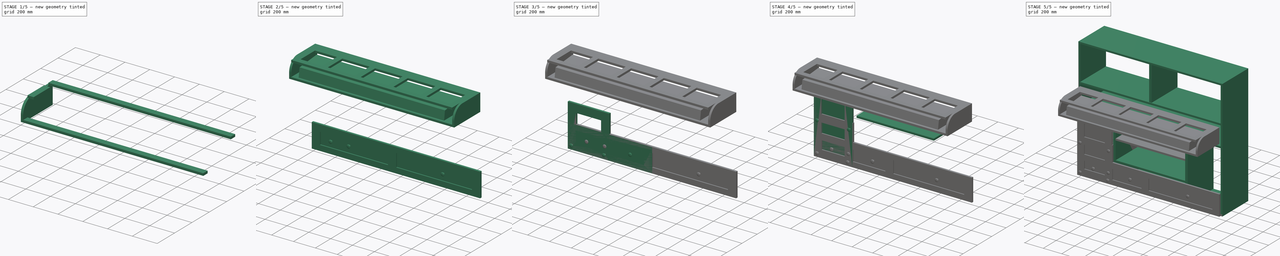
[diagram: build sequence overview — one tinted view per stage of 5, left to right]
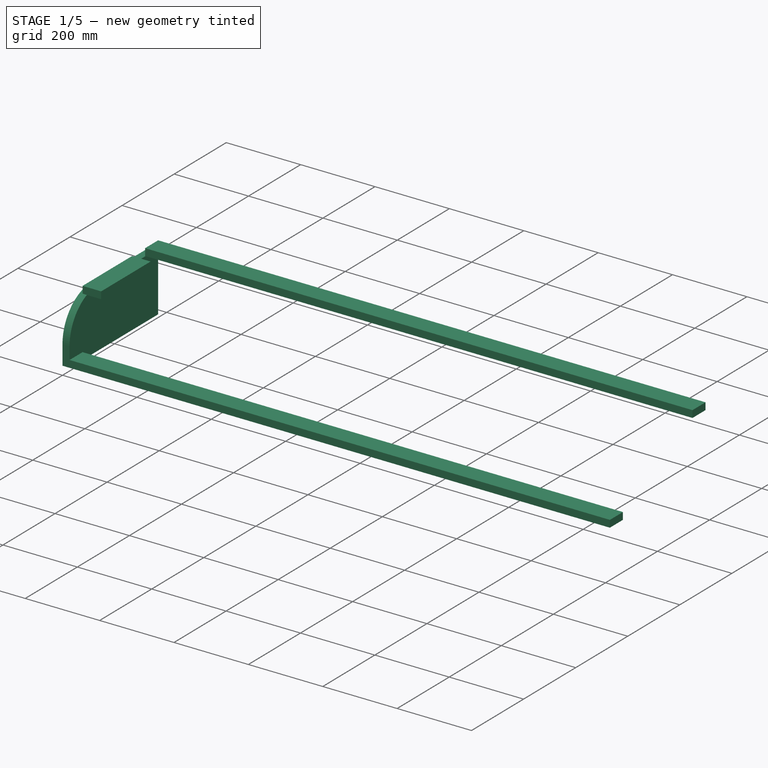
[diagram: stage 1 of 5 — iso view after this stage's code; geometry added in this stage tinted green]
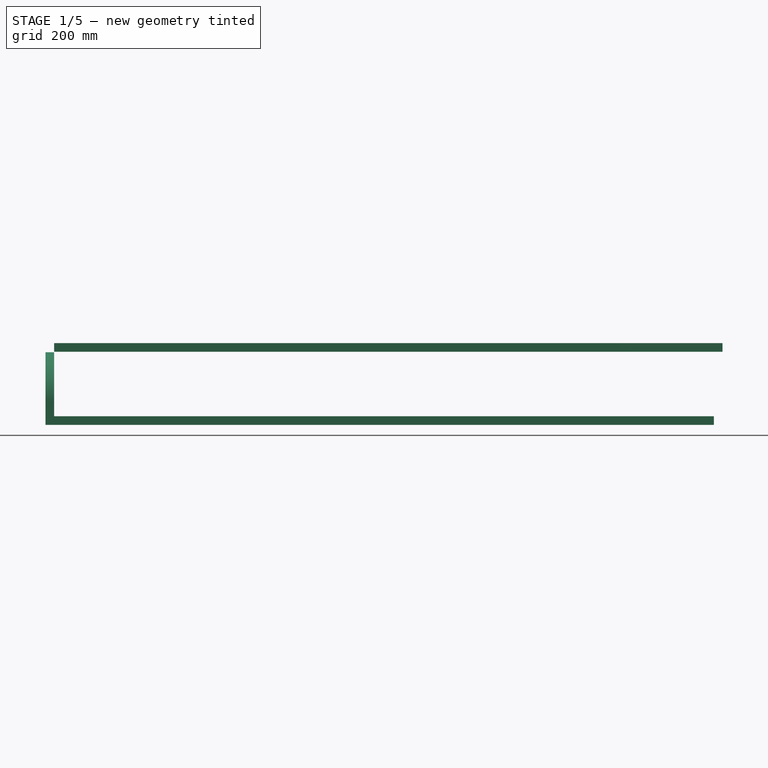
[diagram: stage 1 of 5 — front view after this stage's code; geometry added in this stage tinted green]
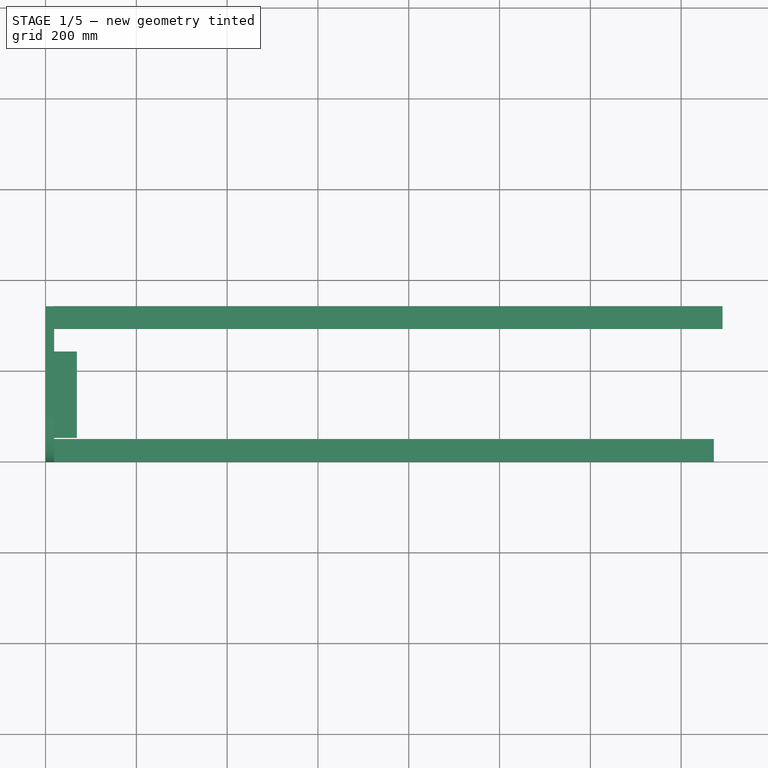
[diagram: stage 1 of 5 — top view after this stage's code; geometry added in this stage tinted green]
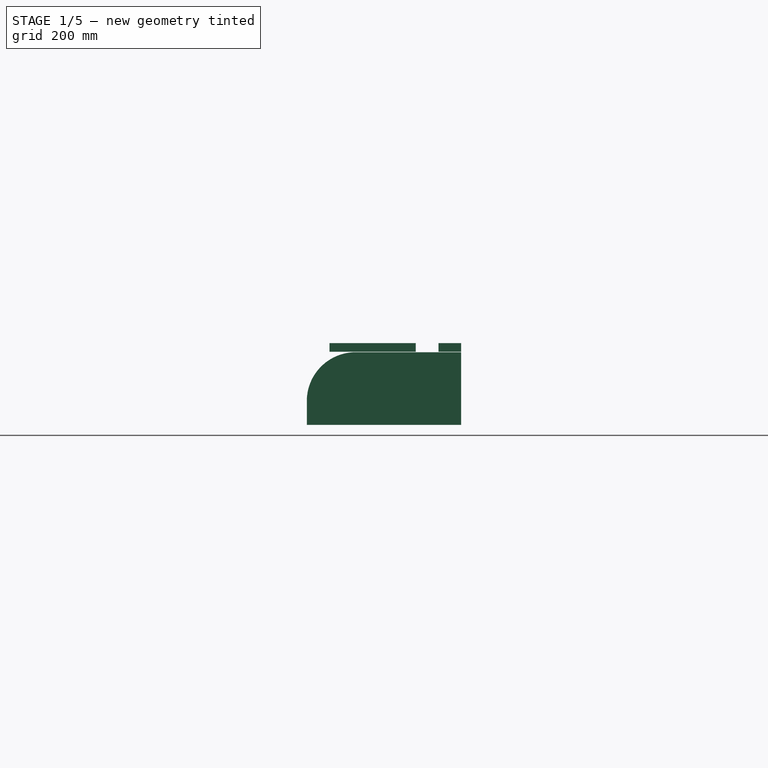
[diagram: stage 1 of 5 — right view after this stage's code; geometry added in this stage tinted green]
FCSTD DOCUMENT  (FreeCAD 0.18.4R)
Label: SzafkaNaPianino
License: All rights reserved
LicenseURL: http://en.wikipedia.org/wiki/All_rights_reserved
objects: PartDesign::Body×23, Sketcher::SketchObject×21, Part::Part2DObjectPython×17, PartDesign::Pad×12, Part::Box×11, PartDesign::FeatureBase×11, PartDesign::Revolution×10, PartDesign::Pocket×7, App::DocumentObjectGroup×4, Part::Compound×1
note: 142 computed .brp shape members not serialized (recipe doc carries the construction recipe); baked Part::Feature solids carry a one-line shape summary decoded from their .brp

FEATURE [PartDesign::Body] Body021  label="PodstawaSzuflady"
  Group = -> [Sketch041,Pad017]
  Origin = -> Origin021
  Placement = pos=(19,0,0) rot=(0,0,1;0rad)
  Tip = -> Pad017
FEATURE [Sketcher::SketchObject] Sketch042
  MapMode = 5
  Placement = pos=(0,0,0) rot=(0.57735,0.57735,0.57735;2.0944rad)
  Support = -> [YZ_Plane022]
  sketch-geometry (5):
    g0: LineSegment StartX=0 StartY=0 StartZ=0 EndX=340 EndY=0 EndZ=0
    g1: LineSegment StartX=340 StartY=0 StartZ=0 EndX=340 EndY=160 EndZ=0
    g2: ArcOfCircle CenterX=107.412 CenterY=52.588 CenterZ=0 NormalX=0 NormalY=0 NormalZ=1 AngleXU=0 Radius=107.412 StartAngle=1.5708 EndAngle=3.14159
    g3: LineSegment StartX=0 StartY=52.588 StartZ=0 EndX=0 EndY=0 EndZ=0
    g4: LineSegment StartX=107.412 StartY=160 StartZ=0 EndX=340 EndY=160 EndZ=0
  constraints (13):
    c: Coincident(g0,g1)
    c: Horizontal(g0,g0)
    c: Vertical(g1,g0)
    c: Coincident(g3,g0)
    c: Coincident(g0,g-1)
    c: Coincident(g2,g4)
    c: Coincident(g4,g1)
    c: Horizontal(g2,g1)
    c: DistanceX(g0,g0) = 340
    c: DistanceY(g1,g1) = 160
    c: Tangent(g2,g4)
    c: Tangent(g2,g3) = -1.5708
    c: Vertical(g0,g2)
FEATURE [PartDesign::Pad] Pad018
  Length = 19
  Length2 = 100
  Placement = pos=(0,0,0) rot=(0.57735,0.57735,0.57735;2.0944rad)
  Profile = -> Sketch042
  Type = 0
FEATURE [PartDesign::Body] Body023  label="SzufladaBokPrawy"
  Group = -> [Clone004]
  Origin = -> Origin023
  Placement = pos=(1491,0,0) rot=(0,0,1;0rad)
  Tip = -> Clone004
FEATURE [Sketcher::SketchObject] Sketch043
  MapMode = 5
  Placement = pos=(0,0,0) rot=(0.57735,0.57735,0.57735;2.0944rad)
  Support = -> [YZ_Plane024]
  sketch-geometry (4):
    g0: LineSegment StartX=0 StartY=0 StartZ=0 EndX=50 EndY=0 EndZ=0
    g1: LineSegment StartX=50 StartY=0 StartZ=0 EndX=50 EndY=19 EndZ=0
    g2: LineSegment StartX=50 StartY=19 StartZ=0 EndX=0 EndY=19 EndZ=0
    g3: LineSegment StartX=0 StartY=19 StartZ=0 EndX=0 EndY=0 EndZ=0
  constraints (11):
    c: Coincident(g0,g1)
    c: Coincident(g1,g2)
    c: Coincident(g2,g3)
    c: Coincident(g3,g0)
    c: Horizontal(g0)
    c: Horizontal(g2)
    c: Vertical(g1)
    c: Vertical(g3)
    c: Coincident(g0,g-1)
    c: DistanceX(g2,g1) = 50
    c: DistanceY(g0,g2) = 19
FEATURE [PartDesign::Pad] Pad019
  Length = 1472
  Length2 = 100
  Placement = pos=(0,0,0) rot=(0.57735,0.57735,0.57735;2.0944rad)
  Profile = -> Sketch043
  Type = 0
FEATURE [PartDesign::Body] Body024  label="PoprzeczkaTylna"
  Group = -> [Sketch043,Pad019]
  Origin = -> Origin024
  Placement = pos=(19,290,141) rot=(0,0,1;0rad)
  Tip = -> Pad019
FEATURE [PartDesign::FeatureBase] Clone005
  BaseFeature = -> Pad019
  Placement = pos=(0,0,0) rot=(0.57735,0.57735,0.57735;2.0944rad)
FEATURE [PartDesign::Body] Body025  label="PoprzeczkaTylnaRuchoma"
  Group = -> [Clone005]
  Origin = -> Origin025
  Placement = pos=(19,240,141) rot=(0,0,1;0rad)
  Tip = -> Clone005
FEATURE [PartDesign::FeatureBase] Clone006
  BaseFeature = -> Body024
  Placement = pos=(19,290,161) rot=(0,0,1;0rad)
FEATURE [PartDesign::Body] Body026  label="PoprzeczkaPrzedniaRuchoma"
  Group = -> [Clone006]
  Origin = -> Origin026
  Placement = pos=(0,-290,-20) rot=(0,0,1;0rad)
  Tip = -> Clone006
FEATURE [Sketcher::SketchObject] Sketch044
  MapMode = 5
  Placement = pos=(0,0,0) rot=(1,0,0;1.5708rad)
  Support = -> [XZ_Plane027]
  sketch-geometry (4):
    g0: LineSegment StartX=0 StartY=0 StartZ=0 EndX=50 EndY=0 EndZ=0
    g1: LineSegment StartX=50 StartY=0 StartZ=0 EndX=50 EndY=19 EndZ=0
    g2: LineSegment StartX=50 StartY=19 StartZ=0 EndX=0 EndY=19 EndZ=0
    g3: LineSegment StartX=0 StartY=19 StartZ=0 EndX=0 EndY=0 EndZ=0
  constraints (11):
    c: Coincident(g0,g1)
    c: Coincident(g1,g2)
    c: Coincident(g2,g3)
    c: Coincident(g3,g0)
    c: Horizontal(g0)
    c: Horizontal(g2)
    c: Vertical(g1)
    c: Vertical(g3)
    c: Coincident(g0,g-1)
    c: DistanceY(g0,g2) = 19
    c: DistanceX(g0,g0) = 50
FEATURE [PartDesign::Pad] Pad020
  Length = 190
  Length2 = 100
  Placement = pos=(0,0,0) rot=(1,0,0;1.5708rad)
  Profile = -> Sketch044
  Type = 0
FEATURE [PartDesign::Body] Body027  label="Podluznica01"
  Group = -> [Sketch044,Pad020]
  Origin = -> Origin027
  Placement = pos=(19,240,141) rot=(0,0,1;0rad)
  Tip = -> Pad020
FEATURE [PartDesign::FeatureBase] Clone007
  BaseFeature = -> Body027
  Placement = pos=(19,240,161) rot=(0,0,1;0rad)
FEATURE [PartDesign::Body] Body028  label="Podluznica02"
  Group = -> [Clone007]
  Origin = -> Origin028
  Placement = pos=(250,0,-20) rot=(0,0,1;0rad)
  Tip = -> Clone007
FEATURE [PartDesign::FeatureBase] Clone008
  BaseFeature = -> Body027
  Placement = pos=(19,240,161) rot=(0,0,1;0rad)
FEATURE [PartDesign::Body] Body029  label="Podluznica03"
  Group = -> [Clone008]
  Origin = -> Origin029
  Placement = pos=(550,0,-20) rot=(0,0,1;0rad)
  Tip = -> Clone008
FEATURE [PartDesign::FeatureBase] Clone009
  BaseFeature = -> Body027
  Placement = pos=(19,240,161) rot=(0,0,1;0rad)
FEATURE [PartDesign::Body] Body030  label="Podluznica04"
  Group = -> [Clone009]
  Origin = -> Origin030
  Placement = pos=(850,0,-20) rot=(0,0,1;0rad)
  Tip = -> Clone009
FEATURE [PartDesign::FeatureBase] Clone010
  BaseFeature = -> Body027
  Placement = pos=(19,240,161) rot=(0,0,1;0rad)
FEATURE [PartDesign::Body] Body031  label="Podluznica05"
  Group = -> [Clone010]
  Origin = -> Origin031
  Placement = pos=(1150,0,-20) rot=(0,0,1;0rad)
  Tip = -> Clone010
FEATURE [PartDesign::FeatureBase] Clone011
  BaseFeature = -> Body027
  Placement = pos=(19,240,161) rot=(0,0,1;0rad)
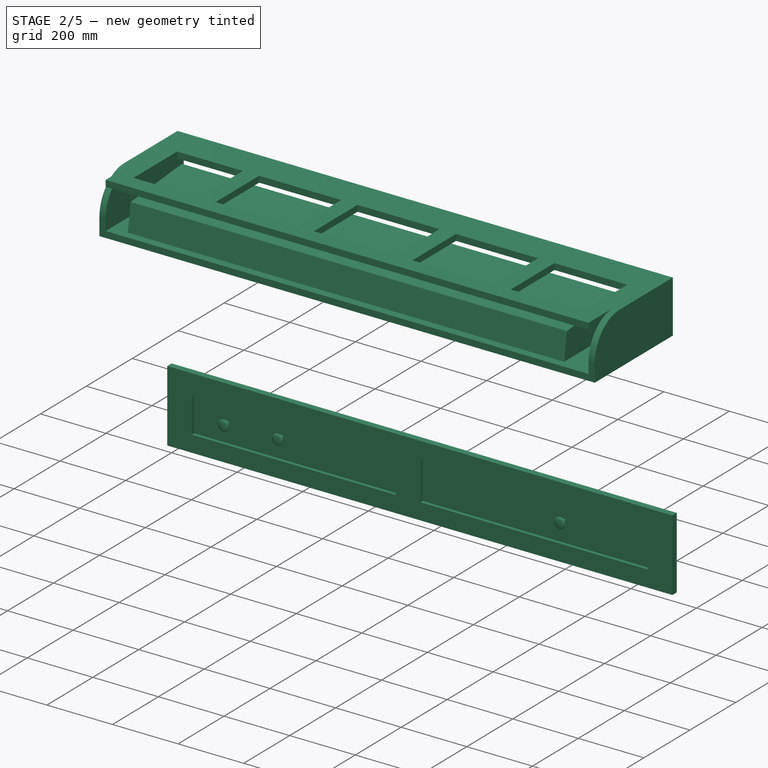
[diagram: stage 2 of 5 — iso view after this stage's code; geometry added in this stage tinted green]
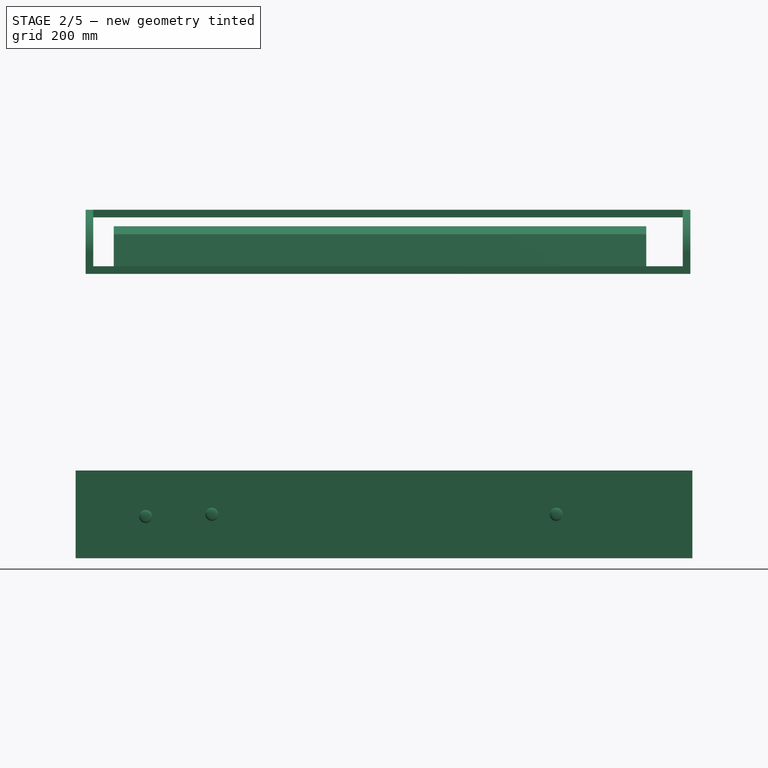
[diagram: stage 2 of 5 — front view after this stage's code; geometry added in this stage tinted green]
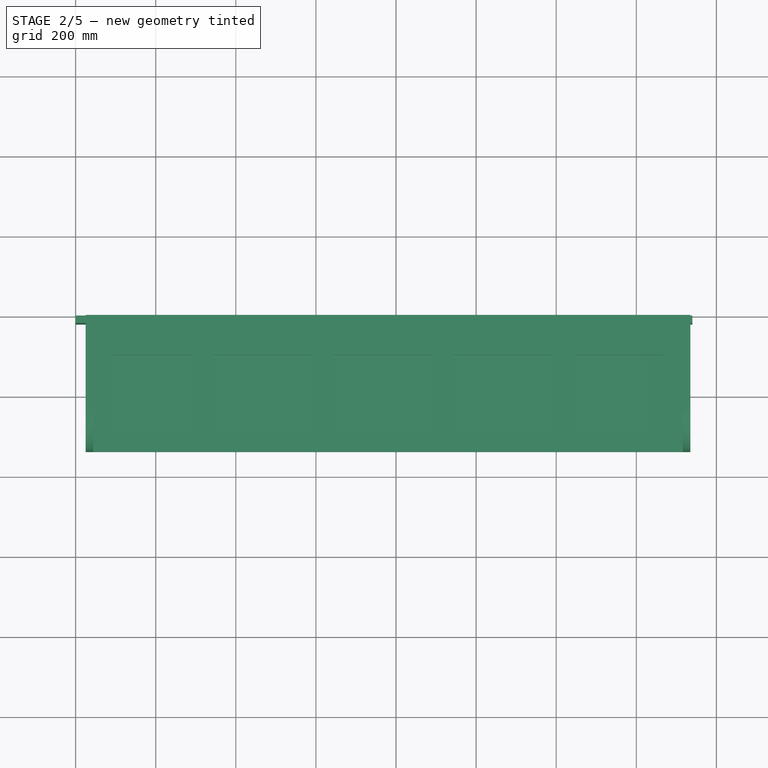
[diagram: stage 2 of 5 — top view after this stage's code; geometry added in this stage tinted green]
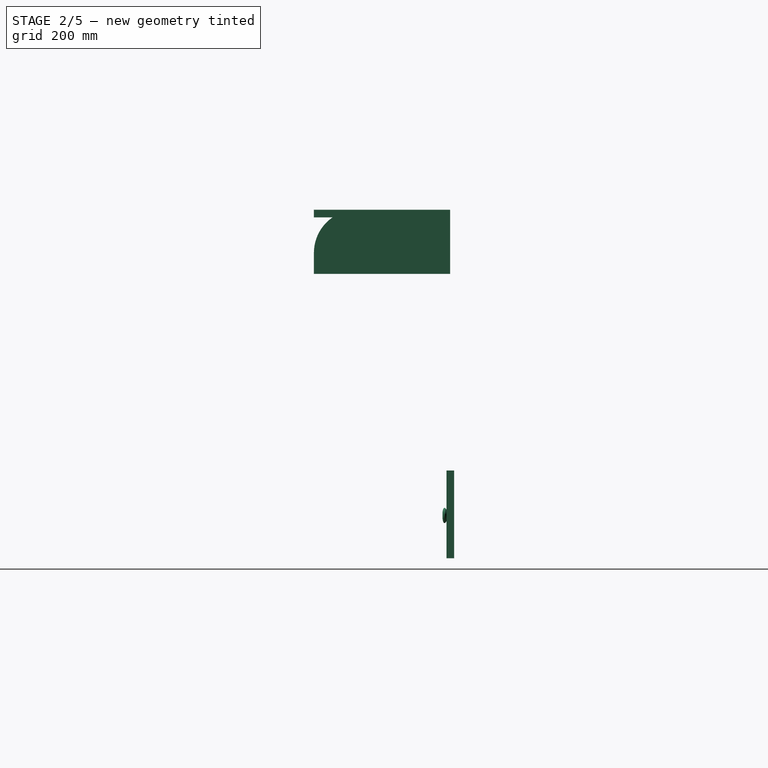
[diagram: stage 2 of 5 — right view after this stage's code; geometry added in this stage tinted green]
FEATURE [PartDesign::Body] Body013  label="SzufladaGorna"
  BaseFeature = -> Body012
  Group = -> [Clone]
  Origin = -> Origin013
  Placement = pos=(394,0,454) rot=(0,0,1;0rad)
  Tip = -> Clone
FEATURE [Sketcher::SketchObject] Sketch033  label="Szkic_SzufladaPianina"
  Placement = pos=(0,0,0) rot=(1,0,0;1.5708rad)
  sketch-geometry (4):
    g0: LineSegment StartX=0 StartY=0 StartZ=0 EndX=1540 EndY=0 EndZ=0
    g1: LineSegment StartX=1540 StartY=0 StartZ=0 EndX=1540 EndY=219 EndZ=0
    g2: LineSegment StartX=1540 StartY=219 StartZ=0 EndX=0 EndY=219 EndZ=0
    g3: LineSegment StartX=0 StartY=219 StartZ=0 EndX=0 EndY=0 EndZ=0
  constraints (11):
    c: Coincident(g0,g1)
    c: Coincident(g1,g2)
    c: Coincident(g2,g3)
    c: Coincident(g3,g0)
    c: Horizontal(g0)
    c: Horizontal(g2)
    c: Vertical(g1)
    c: Vertical(g3)
    c: Coincident(g-1,g0)
    c: DistanceY(g0,g2) = 219
    c: DistanceX(g0,g0) = 1540
FEATURE [Part::Part2DObjectPython] Clone2D007  label="Szkic_SzufladaPianina (2D)"  # Draft 2D object (typed FeaturePython)
  Fuse = false
  Objects = -> [Sketch033]
  Placement = pos=(0,0,0) rot=(1,0,0;1.5708rad)
  Scale = (1,1,1)
FEATURE [PartDesign::Pad] Pad013
  Length = 19
  Length2 = 100
  Placement = pos=(0,0,0) rot=(1,0,0;1.5708rad)
  Profile = -> Clone2D007
  Type = 0
FEATURE [Sketcher::SketchObject] Sketch034
  ExternalGeometry = -> [Pad013]
  MapMode = 5
  Placement = pos=(0,-19,2.1e-15) rot=(1,0,0;1.5708rad)
  Support = -> [Pad013]
  sketch-geometry (4):
    g0: LineSegment StartX=75 StartY=169 StartZ=0 EndX=1465 EndY=169 EndZ=0
    g1: LineSegment StartX=1465 StartY=169 StartZ=0 EndX=1465 EndY=50 EndZ=0
    g2: LineSegment StartX=1465 StartY=50 StartZ=0 EndX=75 EndY=50 EndZ=0
    g3: LineSegment StartX=75 StartY=50 StartZ=0 EndX=75 EndY=169 EndZ=0
  constraints (12):
    c: Coincident(g0,g1)
    c: Coincident(g1,g2)
    c: Coincident(g2,g3)
    c: Coincident(g3,g0)
    c: Horizontal(g0)
    c: Horizontal(g2)
    c: Vertical(g1)
    c: Vertical(g3)
    c: DistanceX(g-3,g0) = 75
    c: DistanceX(g0,g-3) = 75
    c: DistanceY(g-1,g2) = 50
    c: DistanceY(g0,g-3) = 50
FEATURE [PartDesign::Pocket] Pocket013
  BaseFeature = -> Pad013
  Length = 10
  Length2 = 100
  Placement = pos=(0,0,0) rot=(1,0,0;1.5708rad)
  Profile = -> Sketch034
  Type = 0
FEATURE [Part::Part2DObjectPython] Clone2D008  label="Szkic_Galki (2D)004"  # Draft 2D object (typed FeaturePython)
  Fuse = false
  Objects = -> [Sketch021]
  Placement = pos=(1200,-9,109.5) rot=(0,0,1;0rad)
  Scale = (1,1,1)
FEATURE [Part::Part2DObjectPython] Clone2D009  label="Szkic_Galki (2D)004 (2D)"  # Draft 2D object (typed FeaturePython)
  Fuse = false
  Objects = -> [Clone2D008]
  Placement = pos=(340,-9,109.5) rot=(0,0,1;0rad)
  Scale = (1,1,1)
FEATURE [PartDesign::Revolution] Revolution004
  Angle = 360
  Axis = (0,1,0)
  Base = (340,-9,109.5)
  BaseFeature = -> Pocket013
  Placement = pos=(0,0,0) rot=(1,0,0;1.5708rad)
  Profile = -> Clone2D009
  ReferenceAxis = -> Clone2D009 [V_Axis]
FEATURE [PartDesign::Body] Body018  label="DrzwiczkiLeweLewe"
  BaseFeature = -> Body017
  Group = -> [Clone003]
  Origin = -> Origin018
  Placement = pos=(10,0,899) rot=(0,0,1;0rad)
  Tip = -> Clone003
FEATURE [Sketcher::SketchObject] Sketch036
  MapMode = 5
  Placement = pos=(0,0,0) rot=(1,0,0;1.5708rad)
  Support = -> [XZ_Plane010]
FEATURE [Sketcher::SketchObject] Sketch037
  MapMode = 5
  Placement = pos=(0,0,0) rot=(1,0,0;1.5708rad)
  Support = -> [XZ_Plane010]
  sketch-geometry (4):
    g0: LineSegment StartX=-27611.6 StartY=-7968.23 StartZ=0 EndX=-6465.86 EndY=-7968.23 EndZ=0
    g1: LineSegment StartX=-6465.86 StartY=-7968.23 StartZ=0 EndX=-6465.86 EndY=-24954.2 EndZ=0
    g2: LineSegment StartX=-6465.86 StartY=-24954.2 StartZ=0 EndX=-27611.6 EndY=-24954.2 EndZ=0
    g3: LineSegment StartX=-27611.6 StartY=-24954.2 StartZ=0 EndX=-27611.6 EndY=-7968.23 EndZ=0
  constraints (8):
    c: Coincident(g0,g1)
    c: Coincident(g1,g2)
    c: Coincident(g2,g3)
    c: Coincident(g3,g0)
    c: Horizontal(g0)
    c: Horizontal(g2)
    c: Vertical(g1)
    c: Vertical(g3)
FEATURE [PartDesign::Body] Body010  label="DrzwiczkiLewe"
  Group = -> [Clone2D,Pad010,Sketch026,Pocket010,Clone2D001,Revolution,Sketch036,Sketch037]
  Origin = -> Origin010
  Placement = pos=(10,0,10) rot=(0,0,1;0rad)
  Tip = -> Revolution
FEATURE [Sketcher::SketchObject] Sketch038  label="SzkicSzufladaSrodek"
  Placement = pos=(0,0,0) rot=(1,0,0;1.5708rad)
  sketch-geometry (4):
    g0: LineSegment StartX=0 StartY=208 StartZ=0 EndX=772 EndY=208 EndZ=0
    g1: LineSegment StartX=772 StartY=208 StartZ=0 EndX=772 EndY=0 EndZ=0
    g2: LineSegment StartX=772 StartY=0 StartZ=0 EndX=0 EndY=0 EndZ=0
    g3: LineSegment StartX=0 StartY=0 StartZ=0 EndX=0 EndY=208 EndZ=0
  constraints (11):
    c: Coincident(g0,g1)
    c: Coincident(g1,g2)
    c: Coincident(g2,g3)
    c: Coincident(g3,g0)
    c: Horizontal(g0)
    c: Horizontal(g2)
    c: Vertical(g1)
    c: Vertical(g3)
    c: Coincident(g2,g-1)
    c: DistanceY(g2,g0) = 208
    c: DistanceX(g2,g2) = 772
FEATURE [App::DocumentObjectGroup] Group003  label="MasterSzkice"
  Group = -> [Sketch021,Sketch023,Sketch024,Sketch025,Sketch033,Sketch038]
FEATURE [Part::Part2DObjectPython] Clone2D014  label="SzkicSzufladaSrodek (2D)"  # Draft 2D object (typed FeaturePython)
  Fuse = false
  Objects = -> [Sketch038]
  Placement = pos=(0,0,0) rot=(1,0,0;1.5708rad)
  Scale = (1,1,1)
FEATURE [PartDesign::Pad] Pad015
  Length = 19
  Length2 = 100
  Placement = pos=(0,0,0) rot=(1,0,0;1.5708rad)
  Profile = -> Clone2D014
  Type = 0
FEATURE [Sketcher::SketchObject] Sketch039
  ExternalGeometry = -> [Pad015]
  MapMode = 5
  Placement = pos=(0,-19,4.2e-15) rot=(1,0,0;1.5708rad)
  Support = -> [Pad015]
  sketch-geometry (4):
    g0: LineSegment StartX=75 StartY=158 StartZ=0 EndX=697 EndY=158 EndZ=0
    g1: LineSegment StartX=697 StartY=158 StartZ=0 EndX=697 EndY=50 EndZ=0
    g2: LineSegment StartX=697 StartY=50 StartZ=0 EndX=75 EndY=50 EndZ=0
    g3: LineSegment StartX=75 StartY=50 StartZ=0 EndX=75 EndY=158 EndZ=0
  constraints (12):
    c: Coincident(g0,g1)
    c: Coincident(g1,g2)
    c: Coincident(g2,g3)
    c: Coincident(g3,g0)
    c: Horizontal(g0)
    c: Horizontal(g2)
    c: Vertical(g1)
    c: Vertical(g3)
    c: DistanceY(g0,g-3) = 50
    c: DistanceY(g-1,g2) = 50
    c: DistanceX(g-3,g0) = 75
    c: DistanceX(g0,g-3) = 75
FEATURE [PartDesign::Pocket] Pocket015
  BaseFeature = -> Pad015
  Length = 10
  Length2 = 100
  Placement = pos=(0,0,0) rot=(1,0,0;1.5708rad)
  Profile = -> Sketch039
  Type = 0
FEATURE [Part::Part2DObjectPython] Clone2D015  label="Szkic_Galki (2D)007"  # Draft 2D object (typed FeaturePython)
  Fuse = false
  Objects = -> [Sketch021]
  Placement = pos=(175,-9,104) rot=(0,0,1;0rad)
  Scale = (1,1,1)
FEATURE [Part::Part2DObjectPython] Clone2D016  label="Szkic_Galki (2D)007 (2D)"  # Draft 2D object (typed FeaturePython)
  Fuse = false
  Objects = -> [Clone2D015]
  Placement = pos=(574,-9,104) rot=(0,0,1;0rad)
  Scale = (1,1,1)
FEATURE [PartDesign::Revolution] Revolution008
  Angle = 360
  Axis = (0,1,0)
  Base = (175,-9,104)
  BaseFeature = -> Pocket015
  Placement = pos=(0,0,0) rot=(1,0,0;1.5708rad)
  Profile = -> Clone2D015
  ReferenceAxis = -> Clone2D015 [V_Axis]
FEATURE [PartDesign::Body] Body019  label="SzufladaSrodkowa"
  Group = -> [Clone2D014,Pad015,Sketch039,Pocket015,Clone2D015,Clone2D016,Revolution008,Revolution009]
  Origin = -> Origin019
  Placement = pos=(394,0,236) rot=(0,0,1;0rad)
  Tip = -> Revolution009
FEATURE [PartDesign::Revolution] Revolution010
  Angle = 360
  Axis = (0,1,0)
  Base = (1200,-9,109.5)
  BaseFeature = -> Revolution004
  Placement = pos=(0,0,0) rot=(1,0,0;1.5708rad)
  Profile = -> Clone2D008
  ReferenceAxis = -> Clone2D008 [V_Axis]
FEATURE [PartDesign::Body] Body015  label="SzufladaPianina_Galki"
  Group = -> [Clone2D007,Pad013,Sketch034,Pocket013,Clone2D009,Clone2D008,Revolution004,Revolution010]
  Origin = -> Origin015
  Placement = pos=(10,-1,675) rot=(0,0,1;0rad)
  Tip = -> Revolution010
FEATURE [App::DocumentObjectGroup] Group  label="Drzwiczki"
  Group = -> [Body010,Body011,Body012,Body013,Body015,Body,Body016,Body017,Body018,Body019]
FEATURE [Sketcher::SketchObject] Sketch040
  MapMode = 5
  Placement = pos=(0,0,0) rot=(0.57735,0.57735,0.57735;2.0944rad)
  Support = -> [YZ_Plane020]
  sketch-geometry (4):
    g0: LineSegment StartX=12 StartY=80 StartZ=0 EndX=235 EndY=100 EndZ=0
    g1: LineSegment StartX=235 StartY=100 StartZ=0 EndX=235 EndY=0 EndZ=0
    g2: LineSegment StartX=235 StartY=0 StartZ=0 EndX=0 EndY=0 EndZ=0
    g3: LineSegment StartX=12 StartY=80 StartZ=0 EndX=1.8e-15 EndY=0 EndZ=0
  constraints (11):
    c: Coincident(g3,g2)
    c: Coincident(g0,g3)
    c: Coincident(g2,g1)
    c: Coincident(g0,g1)
    c: Horizontal(g2,g1)
    c: Vertical(g0,g1)
    c: DistanceX(g2,g1) = 235
    c: DistanceY(g1,g0) = 100
    c: DistanceX(g2,g0) = 12
    c: DistanceY(g2,g0) = 80
    c: Coincident(g-1,g2)
FEATURE [PartDesign::Pad] Pad016
  Length = 1330
  Length2 = 100
  Placement = pos=(0,0,0) rot=(0.57735,0.57735,0.57735;2.0944rad)
  Profile = -> Sketch040
  Type = 0
FEATURE [PartDesign::Body] Body020  label="PjaninoItself"
  Group = -> [Sketch040,Pad016]
  Origin = -> Origin020
  Placement = pos=(70,24,19) rot=(0,0,1;0rad)
  Tip = -> Pad016
FEATURE [Sketcher::SketchObject] Sketch041
  MapMode = 5
  Support = -> [XY_Plane021]
  sketch-geometry (4):
    g0: LineSegment StartX=0 StartY=0 StartZ=0 EndX=1472 EndY=0 EndZ=0
    g1: LineSegment StartX=1472 StartY=0 StartZ=0 EndX=1472 EndY=340 EndZ=0
    g2: LineSegment StartX=1472 StartY=340 StartZ=0 EndX=0 EndY=340 EndZ=0
    g3: LineSegment StartX=0 StartY=340 StartZ=0 EndX=0 EndY=0 EndZ=0
  constraints (11):
    c: Coincident(g0,g1)
    c: Coincident(g1,g2)
    c: Coincident(g2,g3)
    c: Coincident(g3,g0)
    c: Horizontal(g0)
    c: Horizontal(g2)
    c: Vertical(g1)
    c: Vertical(g3)
    c: Coincident(g-1,g0)
    c: DistanceX(g2,g1) = 1472
    c: DistanceY(g0,g2) = 340
FEATURE [PartDesign::Pad] Pad017
  Length = 19
  Length2 = 100
  Profile = -> Sketch041
  Type = 0
FEATURE [PartDesign::Body] Body022  label="SzufladaBokLewy"
  Group = -> [Sketch042,Pad018]
  Origin = -> Origin022
  Tip = -> Pad018
FEATURE [PartDesign::FeatureBase] Clone004
  BaseFeature = -> Body022
FEATURE [PartDesign::Body] Body032  label="Podluznica06"
  Group = -> [Clone011]
  Origin = -> Origin032
  Placement = pos=(1422,0,-20) rot=(0,0,1;0rad)
  Tip = -> Clone011
FEATURE [App::DocumentObjectGroup] Group004  label="PianinoIOkolice"
  Group = -> [Body020,Body021,Body022,Body023,Body024,Body025,Body026,Body027,Body028,Body029,Body030,Body031,Body032]
FEATURE [Part::Compound] Compound  label="CalaSzufladaZPianinem"
  Links = -> [Body020,Body031,Body023,Body032,Body030,Body021,Body024,Body022,Body028,Body027,Body029,Body025,Body026]
  Placement = pos=(25,-350,710) rot=(0,0,1;0rad)
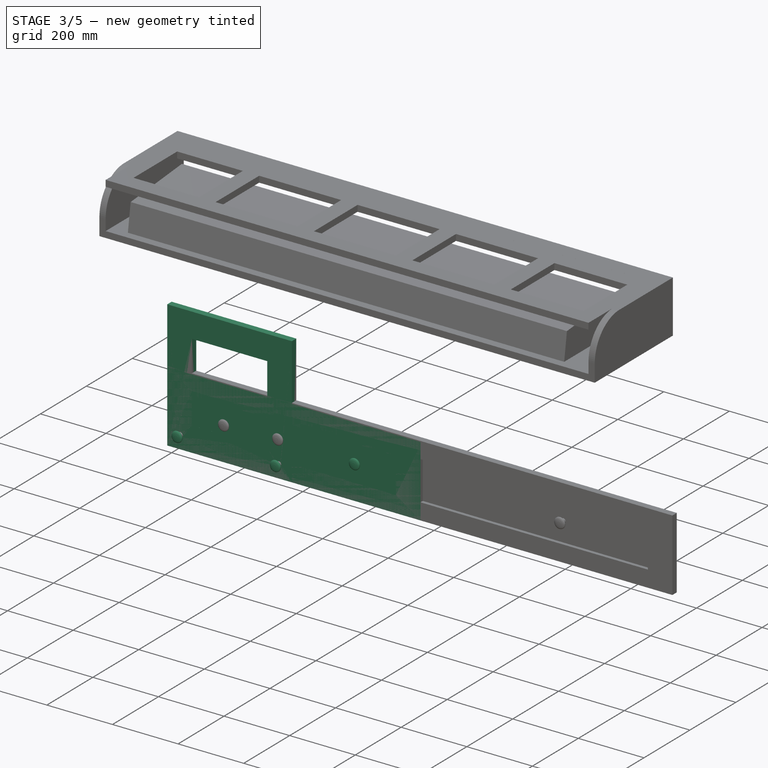
[diagram: stage 3 of 5 — iso view after this stage's code; geometry added in this stage tinted green]
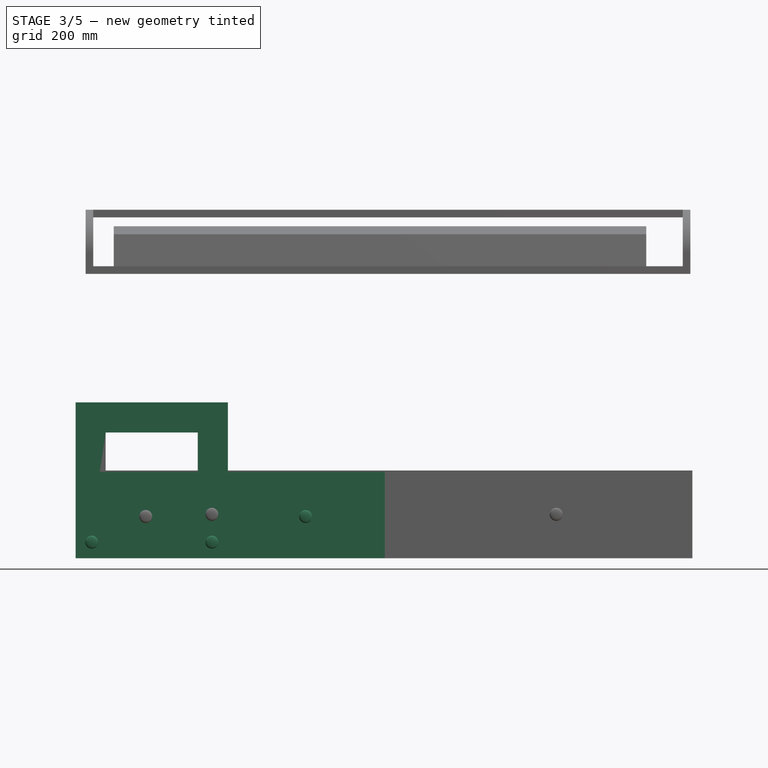
[diagram: stage 3 of 5 — front view after this stage's code; geometry added in this stage tinted green]
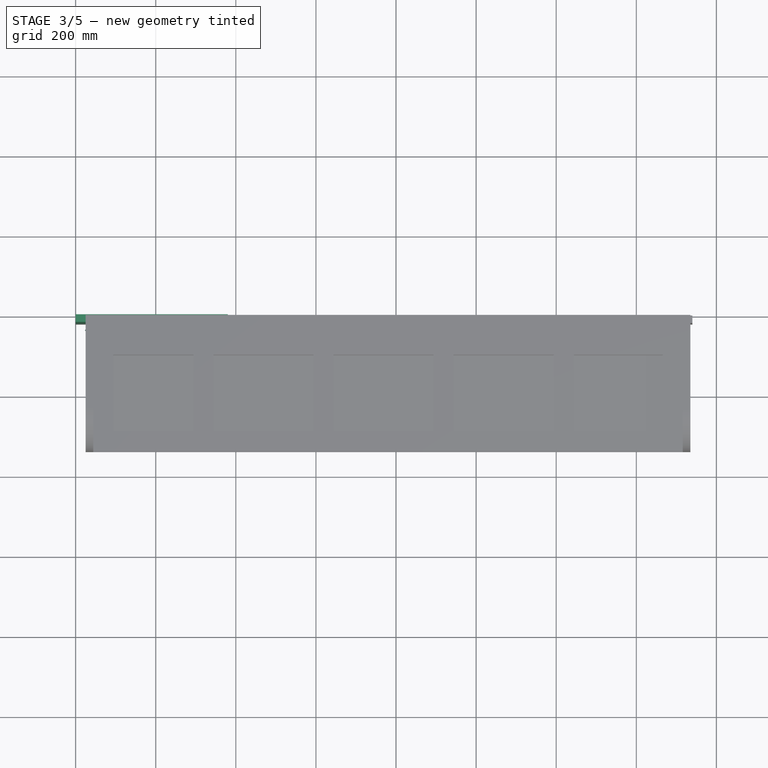
[diagram: stage 3 of 5 — top view after this stage's code; geometry added in this stage tinted green]
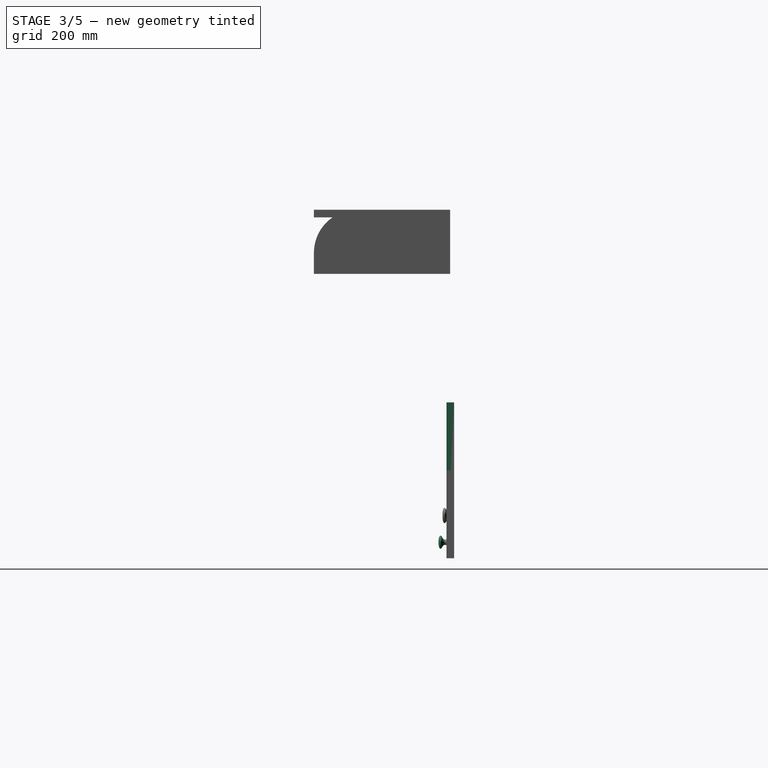
[diagram: stage 3 of 5 — right view after this stage's code; geometry added in this stage tinted green]
FEATURE [Sketcher::SketchObject] Sketch028
  MapMode = 5
  Placement = pos=(0,0,0) rot=(1,0,0;1.5708rad)
  Support = -> [XZ_Plane011]
FEATURE [PartDesign::Body] Body011  label="DrzwiczkiPrawe"
  Group = -> [Clone2D002,Pad011,Sketch027,Pocket011,Clone2D003,Revolution001,Sketch028]
  Origin = -> Origin011
  Placement = pos=(1175,0,10) rot=(0,0,1;0rad)
  Tip = -> Revolution001
FEATURE [Part::Part2DObjectPython] Clone2D004  label="Szkic_Szuflada (2D)"  # Draft 2D object (typed FeaturePython)
  Fuse = false
  Objects = -> [Sketch023]
  Placement = pos=(0,0,0) rot=(1,0,0;1.5708rad)
  Scale = (1,1,1)
FEATURE [PartDesign::Pad] Pad012
  Length = 19
  Length2 = 100
  Placement = pos=(0,0,0) rot=(1,0,0;1.5708rad)
  Profile = -> Clone2D004
  Type = 0
FEATURE [Part::Part2DObjectPython] Clone2D010  label="Szkic_Galki (2D)005"  # Draft 2D object (typed FeaturePython)
  Fuse = false
  Objects = -> [Sketch021]
  Placement = pos=(40,-19,40) rot=(0,0,1;0rad)
  Scale = (1,1,1)
FEATURE [Part::Part2DObjectPython] Clone2D011  label="Szkic_DrzwiczkiGorne (2D)"  # Draft 2D object (typed FeaturePython)
  Fuse = false
  Objects = -> [Sketch024]
  Placement = pos=(0,0,0) rot=(1,0,0;1.5708rad)
  Scale = (1,1,1)
FEATURE [PartDesign::Pad] Pad
  Length = 19
  Length2 = 100
  Placement = pos=(0,0,0) rot=(1,0,0;1.5708rad)
  Profile = -> Clone2D011
  Type = 0
FEATURE [PartDesign::Revolution] Revolution006
  Angle = 360
  Axis = (0,1,0)
  Base = (40,-19,40)
  BaseFeature = -> Pad
  Placement = pos=(0,0,0) rot=(1,0,0;1.5708rad)
  Profile = -> Clone2D010
  ReferenceAxis = -> Clone2D010 [V_Axis]
FEATURE [Sketcher::SketchObject] Sketch
  ExternalGeometry = -> [Revolution006]
  MapMode = 5
  Placement = pos=(0,-19,4.2e-15) rot=(1,0,0;1.5708rad)
  Support = -> [Revolution006]
  sketch-geometry (4):
    g0: LineSegment StartX=75 StartY=314 StartZ=0 EndX=305 EndY=314 EndZ=0
    g1: LineSegment StartX=305 StartY=314 StartZ=0 EndX=305 EndY=75 EndZ=0
    g2: LineSegment StartX=305 StartY=75 StartZ=0 EndX=75 EndY=75 EndZ=0
    g3: LineSegment StartX=75 StartY=75 StartZ=0 EndX=75 EndY=314 EndZ=0
  constraints (12):
    c: Coincident(g0,g1)
    c: Coincident(g1,g2)
    c: Coincident(g2,g3)
    c: Coincident(g3,g0)
    c: Horizontal(g0)
    c: Horizontal(g2)
    c: Vertical(g1)
    c: Vertical(g3)
    c: DistanceX(g-3,g0) = 75
    c: DistanceX(g0,g-3) = 75
    c: DistanceY(g-1,g2) = 75
    c: DistanceY(g0,g-3) = 75
FEATURE [PartDesign::Pocket] Pocket
  BaseFeature = -> Revolution006
  Length = 5
  Length2 = 100
  Placement = pos=(0,0,0) rot=(1,0,0;1.5708rad)
  Profile = -> Sketch
  Type = 1
FEATURE [PartDesign::Body] Body  label="DrzwiczkiLewePrawe"
  Group = -> [Clone2D010,Clone2D011,Pad,Revolution006,Sketch,Pocket]
  Origin = -> Origin
  Placement = pos=(395.5,0,899) rot=(0,0,1;0rad)
  Tip = -> Pocket
FEATURE [PartDesign::FeatureBase] Clone002
  BaseFeature = -> Body
FEATURE [PartDesign::Body] Body016  label="DrzwiczkiPrawePrawe"
  BaseFeature = -> Body
  Group = -> [Clone002]
  Origin = -> Origin016
  Placement = pos=(1170,0,899) rot=(0,0,1;0rad)
  Tip = -> Clone002
FEATURE [Part::Part2DObjectPython] Clone2D012  label="Szkic_DrzwiczkiGorne (2D)001"  # Draft 2D object (typed FeaturePython)
  Fuse = false
  Objects = -> [Sketch024]
  Placement = pos=(0,0,0) rot=(1,0,0;1.5708rad)
  Scale = (1,1,1)
FEATURE [PartDesign::Pad] Pad014
  Length = 19
  Length2 = 100
  Placement = pos=(0,0,0) rot=(1,0,0;1.5708rad)
  Profile = -> Clone2D012
  Type = 0
FEATURE [Sketcher::SketchObject] Sketch035
  ExternalGeometry = -> [Pad014]
  MapMode = 5
  Placement = pos=(0,-19,4.2e-15) rot=(1,0,0;1.5708rad)
  Support = -> [Pad014]
  sketch-geometry (4):
    g0: LineSegment StartX=75 StartY=314 StartZ=0 EndX=305 EndY=314 EndZ=0
    g1: LineSegment StartX=305 StartY=314 StartZ=0 EndX=305 EndY=75 EndZ=0
    g2: LineSegment StartX=305 StartY=75 StartZ=0 EndX=75 EndY=75 EndZ=0
    g3: LineSegment StartX=75 StartY=75 StartZ=0 EndX=75 EndY=314 EndZ=0
  constraints (12):
    c: Coincident(g0,g1)
    c: Coincident(g1,g2)
    c: Coincident(g2,g3)
    c: Coincident(g3,g0)
    c: Horizontal(g0)
    c: Horizontal(g2)
    c: Vertical(g1)
    c: Vertical(g3)
    c: DistanceY(g-1,g2) = 75
    c: DistanceY(g0,g-3) = 75
    c: DistanceX(g-3,g0) = 75
    c: DistanceX(g0,g-3) = 75
FEATURE [PartDesign::Pocket] Pocket014
  BaseFeature = -> Pad014
  Length = 5
  Length2 = 100
  Placement = pos=(0,0,0) rot=(1,0,0;1.5708rad)
  Profile = -> Sketch035
  Type = 1
FEATURE [Part::Part2DObjectPython] Clone2D013  label="Szkic_Galki (2D)006"  # Draft 2D object (typed FeaturePython)
  Fuse = false
  Objects = -> [Sketch021]
  Placement = pos=(340,-19,40) rot=(0,0,1;0rad)
  Scale = (1,1,1)
FEATURE [PartDesign::Revolution] Revolution007
  Angle = 360
  Axis = (0,1,0)
  Base = (340,-19,40)
  BaseFeature = -> Pocket014
  Placement = pos=(0,0,0) rot=(1,0,0;1.5708rad)
  Profile = -> Clone2D013
  ReferenceAxis = -> Clone2D013 [V_Axis]
FEATURE [PartDesign::Body] Body017  label="DrzwiczkiPraweLewe"
  Group = -> [Clone2D012,Pad014,Sketch035,Pocket014,Clone2D013,Revolution007]
  Origin = -> Origin017
  Placement = pos=(784.5,0,899) rot=(0,0,1;0rad)
  Tip = -> Revolution007
FEATURE [PartDesign::FeatureBase] Clone003
  BaseFeature = -> Body017
FEATURE [PartDesign::Revolution] Revolution009
  Angle = 360
  Axis = (0,1,0)
  Base = (574,-9,104)
  BaseFeature = -> Revolution008
  Placement = pos=(0,0,0) rot=(1,0,0;1.5708rad)
  Profile = -> Clone2D016
  ReferenceAxis = -> Clone2D016 [V_Axis]
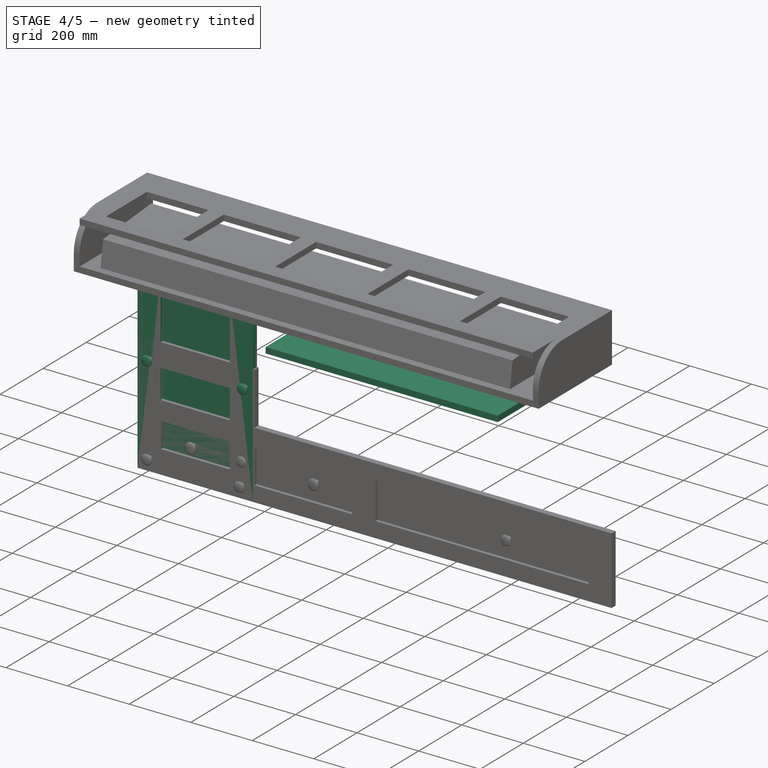
[diagram: stage 4 of 5 — iso view after this stage's code; geometry added in this stage tinted green]
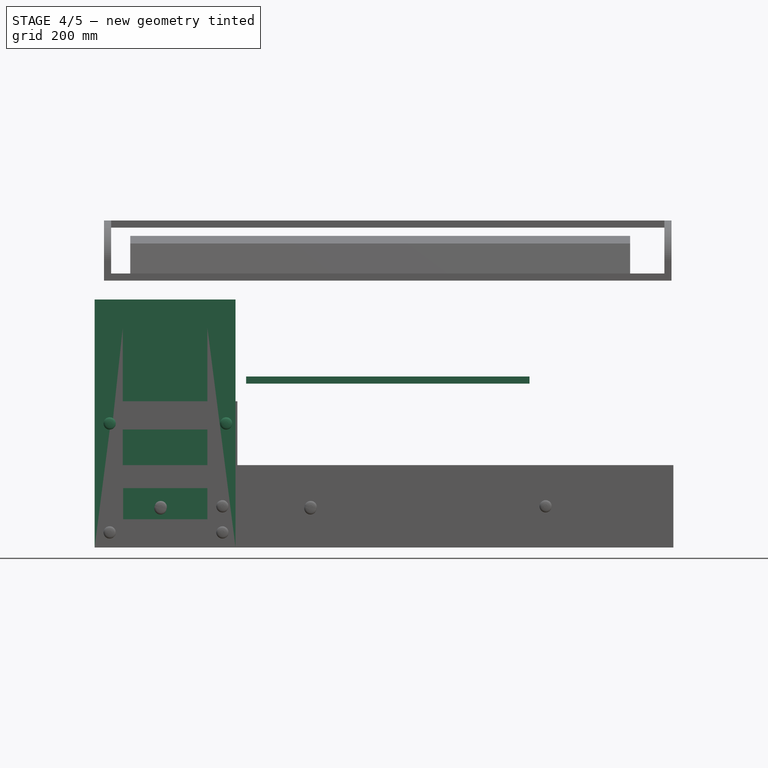
[diagram: stage 4 of 5 — front view after this stage's code; geometry added in this stage tinted green]
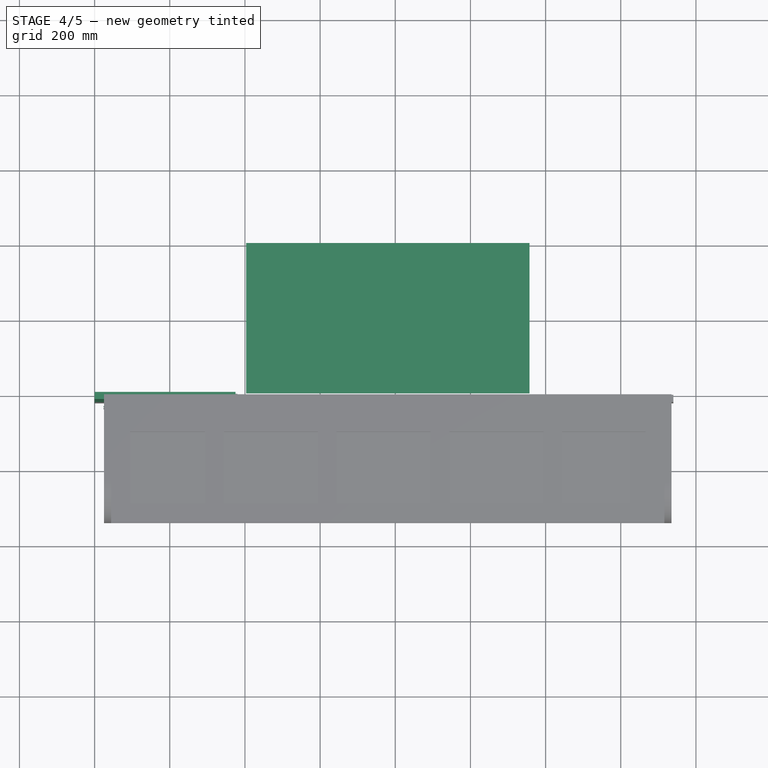
[diagram: stage 4 of 5 — top view after this stage's code; geometry added in this stage tinted green]
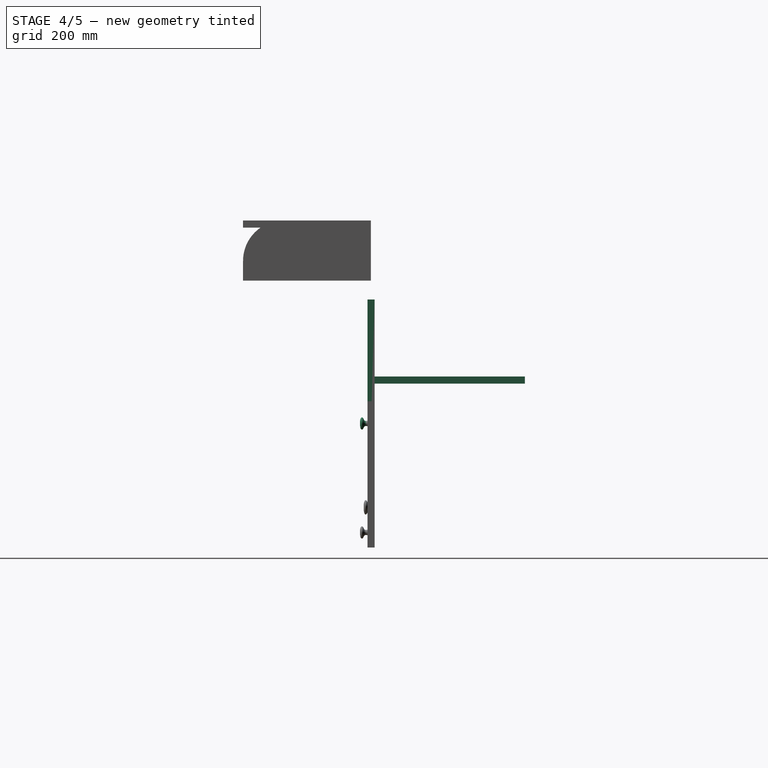
[diagram: stage 4 of 5 — right view after this stage's code; geometry added in this stage tinted green]
FEATURE [Part::Box] Box010  label="PoprzeczkaSzufladyGorna"
  AttacherType = Attacher::AttachEngine3D
  Height = 19
  Length = 754
  Placement = pos=(403,0,436) rot=(0,0,1;0rad)
  Width = 400
FEATURE [App::DocumentObjectGroup] Group001  label="Obudowa"
  Group = -> [Box010,Box009,Box008,Box006,Box005,Box004,Box003,Box002,Box001,Box,Box007]
FEATURE [Sketcher::SketchObject] Sketch021  label="Szkic_Galki"
  sketch-geometry (11):
    g0: LineSegment StartX=0 StartY=0 StartZ=0 EndX=0 EndY=-20 EndZ=0
    g1: LineSegment StartX=0 StartY=0 StartZ=0 EndX=-7.5 EndY=0 EndZ=0
    g2-g6: Circle [constr] x5 (B-spline internal-alignment scaffolding for g7; pole/knot coordinates omitted)
    g7: BSplineCurve PolesCount=5 KnotsCount=3 Degree=3 IsPeriodic=0
    g8: GeomPoint [constr] X=0 Y=-20 Z=0
    g9: GeomPoint [constr] X=-14.564 Y=-11.9264 Z=0
    g10: GeomPoint [constr] X=-7.5 Y=0 Z=0
  constraints (16):
    c: Radius(g2) = 7
    c: InternalAlignment(g2-g6 -> g7) x5
    c: InternalAlignment(g8,g7)
    c: InternalAlignment(g9,g7)
    c: InternalAlignment(g10,g7)
    c: DistanceY(g0,g0) = 20
    c: Coincident(g0,g1)
    c: Coincident(g0,g-1)
    c: Coincident(g7,g0)
    c: DistanceX(g1,g0) = 7.5
    c: Coincident(g7,g1)
    c: Horizontal(g3,g0)
    c: Vertical(g4,g3)
    c: DistanceX(g3,g0) = 18
    c: Vertical(g0,g0)
    c: Horizontal(g4,g5)
FEATURE [Sketcher::SketchObject] Sketch023  label="Szkic_Szuflada"
  Placement = pos=(0,0,0) rot=(1,0,0;1.5708rad)
  sketch-geometry (4):
    g0: LineSegment StartX=0 StartY=0 StartZ=0 EndX=772 EndY=0 EndZ=0
    g1: LineSegment StartX=772 StartY=0 StartZ=0 EndX=772 EndY=216 EndZ=0
    g2: LineSegment StartX=772 StartY=216 StartZ=0 EndX=0 EndY=216 EndZ=0
    g3: LineSegment StartX=0 StartY=216 StartZ=0 EndX=0 EndY=0 EndZ=0
  constraints (11):
    c: Coincident(g0,g1)
    c: Coincident(g1,g2)
    c: Coincident(g2,g3)
    c: Coincident(g3,g0)
    c: Horizontal(g0)
    c: Horizontal(g2)
    c: Vertical(g1)
    c: Vertical(g3)
    c: Coincident(g-1,g0)
    c: DistanceX(g0,g0) = 772
    c: DistanceY(g0,g2) = 216
FEATURE [Sketcher::SketchObject] Sketch024  label="Szkic_DrzwiczkiGorne"
  Placement = pos=(0,0,0) rot=(1,0,0;1.5708rad)
  sketch-geometry (4):
    g0: LineSegment StartX=0 StartY=0 StartZ=0 EndX=380 EndY=0 EndZ=0
    g1: LineSegment StartX=380 StartY=0 StartZ=0 EndX=380 EndY=389 EndZ=0
    g2: LineSegment StartX=380 StartY=389 StartZ=0 EndX=0 EndY=389 EndZ=0
    g3: LineSegment StartX=0 StartY=389 StartZ=0 EndX=0 EndY=0 EndZ=0
  constraints (11):
    c: Coincident(g0,g1)
    c: Coincident(g1,g2)
    c: Coincident(g2,g3)
    c: Coincident(g3,g0)
    c: Horizontal(g0)
    c: Horizontal(g2)
    c: Vertical(g1)
    c: Vertical(g3)
    c: Coincident(g0,g-1)
    c: DistanceX(g0,g0) = 380
    c: DistanceY(g0,g2) = 389
FEATURE [Sketcher::SketchObject] Sketch025  label="Szkic_DrzwiczkiDolne"
  Placement = pos=(0,0,0) rot=(1,0,0;1.5708rad)
  sketch-geometry (4):
    g0: LineSegment StartX=0 StartY=0 StartZ=0 EndX=375 EndY=0 EndZ=0
    g1: LineSegment StartX=375 StartY=0 StartZ=0 EndX=375 EndY=660 EndZ=0
    g2: LineSegment StartX=375 StartY=660 StartZ=0 EndX=0 EndY=660 EndZ=0
    g3: LineSegment StartX=0 StartY=660 StartZ=0 EndX=0 EndY=0 EndZ=0
  constraints (11):
    c: Coincident(g0,g1)
    c: Coincident(g1,g2)
    c: Coincident(g2,g3)
    c: Coincident(g3,g0)
    c: Horizontal(g0)
    c: Horizontal(g2)
    c: Vertical(g1)
    c: Vertical(g3)
    c: Coincident(g0,g-1)
    c: DistanceY(g0,g2) = 660
    c: DistanceX(g0,g0) = 375
FEATURE [Part::Part2DObjectPython] Clone2D  label="Szkic_DrzwiczkiDolne (2D)"  # Draft 2D object (typed FeaturePython)
  Fuse = false
  Objects = -> [Sketch025]
  Placement = pos=(0,0,0) rot=(1,0,0;1.5708rad)
  Scale = (1,1,1)
FEATURE [PartDesign::Pad] Pad010  label="ObudowaDrzwiczkuf"
  Length = 19
  Length2 = 100
  Placement = pos=(0,0,0) rot=(1,0,0;1.5708rad)
  Profile = -> Clone2D
  Type = 0
FEATURE [Sketcher::SketchObject] Sketch026
  ExternalGeometry = -> [Pad010]
  MapMode = 5
  Placement = pos=(0,-19,4.2e-15) rot=(1,0,0;1.5708rad)
  Support = -> [Pad010]
  sketch-geometry (4):
    g0: LineSegment StartX=75 StartY=585 StartZ=0 EndX=300 EndY=585 EndZ=0
    g1: LineSegment StartX=300 StartY=585 StartZ=0 EndX=300 EndY=75 EndZ=0
    g2: LineSegment StartX=300 StartY=75 StartZ=0 EndX=75 EndY=75 EndZ=0
    g3: LineSegment StartX=75 StartY=75 StartZ=0 EndX=75 EndY=585 EndZ=0
  constraints (12):
    c: Coincident(g0,g1)
    c: Coincident(g1,g2)
    c: Coincident(g2,g3)
    c: Coincident(g3,g0)
    c: Horizontal(g0)
    c: Horizontal(g2)
    c: Vertical(g1)
    c: Vertical(g3)
    c: DistanceX(g-3,g0) = 75
    c: DistanceX(g0,g-3) = 75
    c: DistanceY(g0,g-3) = 75
    c: DistanceY(g-1,g2) = 75
FEATURE [PartDesign::Pocket] Pocket010
  BaseFeature = -> Pad010
  Length = 10
  Length2 = 100
  Placement = pos=(0,0,0) rot=(1,0,0;1.5708rad)
  Profile = -> Sketch026
  Type = 0
FEATURE [Part::Part2DObjectPython] Clone2D001  label="Szkic_Galki (2D)"  # Draft 2D object (typed FeaturePython)
  AttachmentOffset = pos=(350,19,-330) rot=(0,0,1;3.14159rad)
  Fuse = false
  MapMode = 5
  Objects = -> [Sketch021]
  Placement = pos=(350,-19,330) rot=(0,-1,0;3.14159rad)
  Scale = (1,1,1)
  Support = -> [Pocket010]
FEATURE [PartDesign::Revolution] Revolution
  Angle = 360
  Axis = (-1e-16,1,-4e-16)
  Base = (350,-19,330)
  BaseFeature = -> Pocket010
  Placement = pos=(0,0,0) rot=(1,0,0;1.5708rad)
  Profile = -> Clone2D001
  ReferenceAxis = -> Clone2D001 [V_Axis]
FEATURE [Part::Part2DObjectPython] Clone2D002  label="Szkic_DrzwiczkiDolne (2D)001"  # Draft 2D object (typed FeaturePython)
  Fuse = false
  Objects = -> [Sketch025]
  Placement = pos=(0,0,0) rot=(1,0,0;1.5708rad)
  Scale = (1,1,1)
FEATURE [PartDesign::Pad] Pad011  label="ObudowaPrawychDrzwi"
  Length = 19
  Length2 = 100
  Placement = pos=(0,0,0) rot=(1,0,0;1.5708rad)
  Profile = -> Clone2D002
  Type = 0
FEATURE [Sketcher::SketchObject] Sketch027
  ExternalGeometry = -> [Pad011]
  MapMode = 5
  Placement = pos=(0,-19,4.2e-15) rot=(1,0,0;1.5708rad)
  Support = -> [Pad011]
  sketch-geometry (4):
    g0: LineSegment StartX=75 StartY=585 StartZ=0 EndX=300 EndY=585 EndZ=0
    g1: LineSegment StartX=300 StartY=585 StartZ=0 EndX=300 EndY=75 EndZ=0
    g2: LineSegment StartX=300 StartY=75 StartZ=0 EndX=75 EndY=75 EndZ=0
    g3: LineSegment StartX=75 StartY=75 StartZ=0 EndX=75 EndY=585 EndZ=0
  constraints (12):
    c: Coincident(g0,g1)
    c: Coincident(g1,g2)
    c: Coincident(g2,g3)
    c: Coincident(g3,g0)
    c: Horizontal(g0)
    c: Horizontal(g2)
    c: Vertical(g1)
    c: Vertical(g3)
    c: DistanceX(g-3,g0) = 75
    c: DistanceX(g0,g-3) = 75
    c: DistanceY(g0,g-3) = 75
    c: DistanceY(g-1,g2) = 75
FEATURE [PartDesign::Pocket] Pocket011
  BaseFeature = -> Pad011
  Length = 10
  Length2 = 100
  Placement = pos=(0,0,0) rot=(1,0,0;1.5708rad)
  Profile = -> Sketch027
  Type = 0
FEATURE [Part::Part2DObjectPython] Clone2D003  label="Szkic_Galki (2D)001"  # Draft 2D object (typed FeaturePython)
  AttachmentOffset = pos=(40,19,-330) rot=(0,0,1;3.14159rad)
  Fuse = false
  MapMode = 5
  Objects = -> [Sketch021]
  Placement = pos=(40,-19,330) rot=(0,-1,0;3.14159rad)
  Scale = (1,1,1)
  Support = -> [Pocket011]
FEATURE [PartDesign::Revolution] Revolution001
  Angle = 360
  Axis = (-1e-16,1,-4e-16)
  Base = (40,-19,330)
  BaseFeature = -> Pocket011
  Placement = pos=(0,0,0) rot=(1,0,0;1.5708rad)
  Profile = -> Clone2D003
  ReferenceAxis = -> Clone2D003 [V_Axis]
FEATURE [Sketcher::SketchObject] Sketch029
  ExternalGeometry = -> [Pad012]
  MapMode = 5
  Placement = pos=(0,-19,6.3e-15) rot=(1,0,0;1.5708rad)
  Support = -> [Pad012]
  sketch-geometry (4):
    g0: LineSegment StartX=75 StartY=166 StartZ=0 EndX=697 EndY=166 EndZ=0
    g1: LineSegment StartX=697 StartY=166 StartZ=0 EndX=697 EndY=50 EndZ=0
    g2: LineSegment StartX=697 StartY=50 StartZ=0 EndX=75 EndY=50 EndZ=0
    g3: LineSegment StartX=75 StartY=50 StartZ=0 EndX=75 EndY=166 EndZ=0
  constraints (12):
    c: Coincident(g0,g1)
    c: Coincident(g1,g2)
    c: Coincident(g2,g3)
    c: Coincident(g3,g0)
    c: Horizontal(g0)
    c: Horizontal(g2)
    c: Vertical(g1)
    c: Vertical(g3)
    c: DistanceX(g0,g-3) = 75
    c: DistanceX(g-3,g0) = 75
    c: DistanceY(g2) = 50
    c: DistanceY(g0,g-3) = 50
FEATURE [PartDesign::Pocket] Pocket012
  BaseFeature = -> Pad012
  Length = 10
  Length2 = 100
  Placement = pos=(0,0,0) rot=(1,0,0;1.5708rad)
  Profile = -> Sketch029
  Type = 0
FEATURE [Part::Part2DObjectPython] Clone2D005  label="Szkic_Galki (2D)002"  # Draft 2D object (typed FeaturePython)
  Fuse = false
  Objects = -> [Sketch021]
  Placement = pos=(175,-9,107.5) rot=(0,0,1;0rad)
  Scale = (1,1,1)
FEATURE [PartDesign::Revolution] Revolution002
  Angle = 360
  Axis = (0,1,0)
  Base = (175,-9,107.5)
  BaseFeature = -> Pocket012
  Placement = pos=(0,0,0) rot=(1,0,0;1.5708rad)
  Profile = -> Clone2D005
  ReferenceAxis = -> Clone2D005 [V_Axis]
FEATURE [Part::Part2DObjectPython] Clone2D006  label="Szkic_Galki (2D)003"  # Draft 2D object (typed FeaturePython)
  Fuse = false
  Objects = -> [Sketch021]
  Placement = pos=(574,-9,107.5) rot=(0,0,1;0rad)
  Scale = (1,1,1)
FEATURE [PartDesign::Revolution] Revolution003
  Angle = 360
  Axis = (0,1,0)
  Base = (574,-9,107.5)
  BaseFeature = -> Revolution002
  Placement = pos=(0,0,0) rot=(1,0,0;1.5708rad)
  Profile = -> Clone2D006
  ReferenceAxis = -> Clone2D006 [V_Axis]
FEATURE [PartDesign::Body] Body012  label="SzufladaDolna"
  Group = -> [Clone2D004,Pad012,Sketch029,Pocket012,Clone2D005,Revolution002,Clone2D006,Revolution003]
  Origin = -> Origin012
  Placement = pos=(394,0,10) rot=(0,0,1;0rad)
  Tip = -> Revolution003
FEATURE [PartDesign::FeatureBase] Clone
  BaseFeature = -> Body012
  Placement = pos=(1,0,0) rot=(0,0,1;0rad)
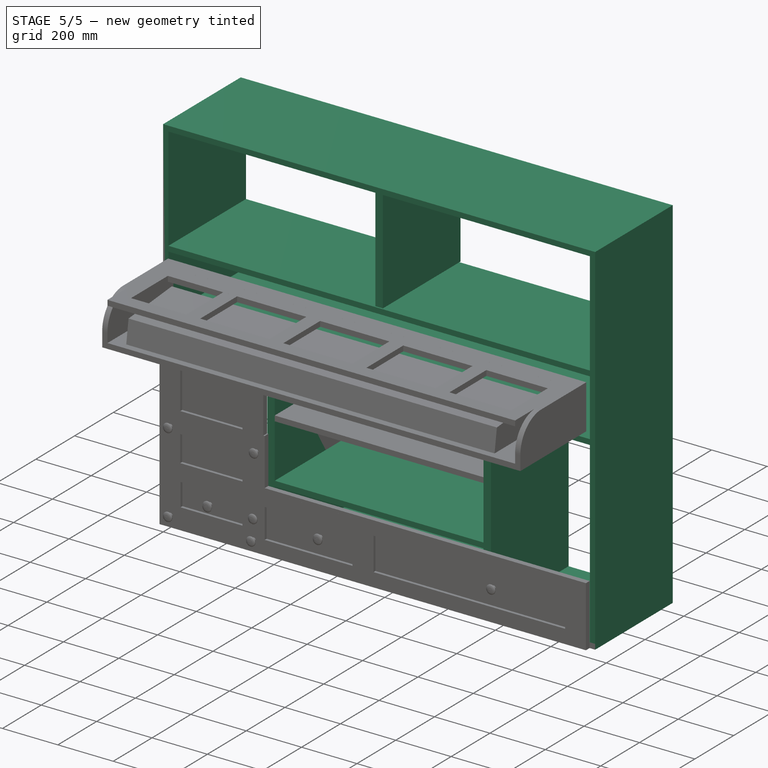
[diagram: stage 5 of 5 — iso view after this stage's code; geometry added in this stage tinted green]
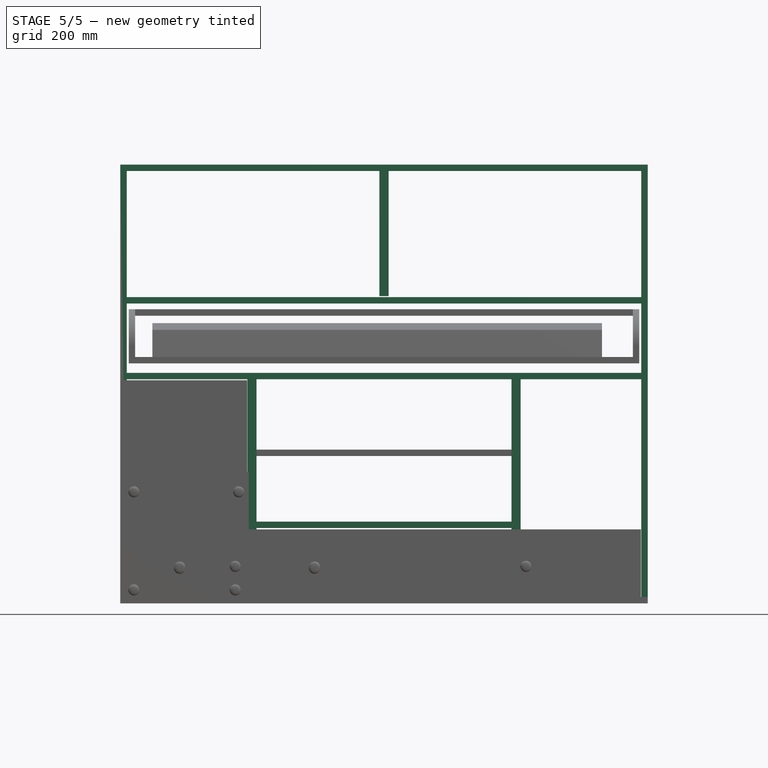
[diagram: stage 5 of 5 — front view after this stage's code; geometry added in this stage tinted green]
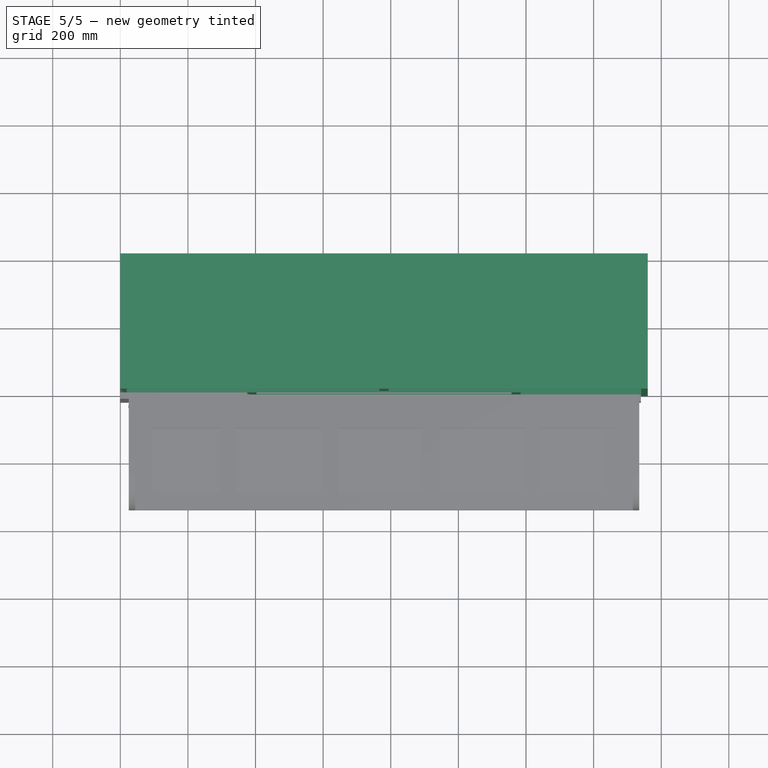
[diagram: stage 5 of 5 — top view after this stage's code; geometry added in this stage tinted green]
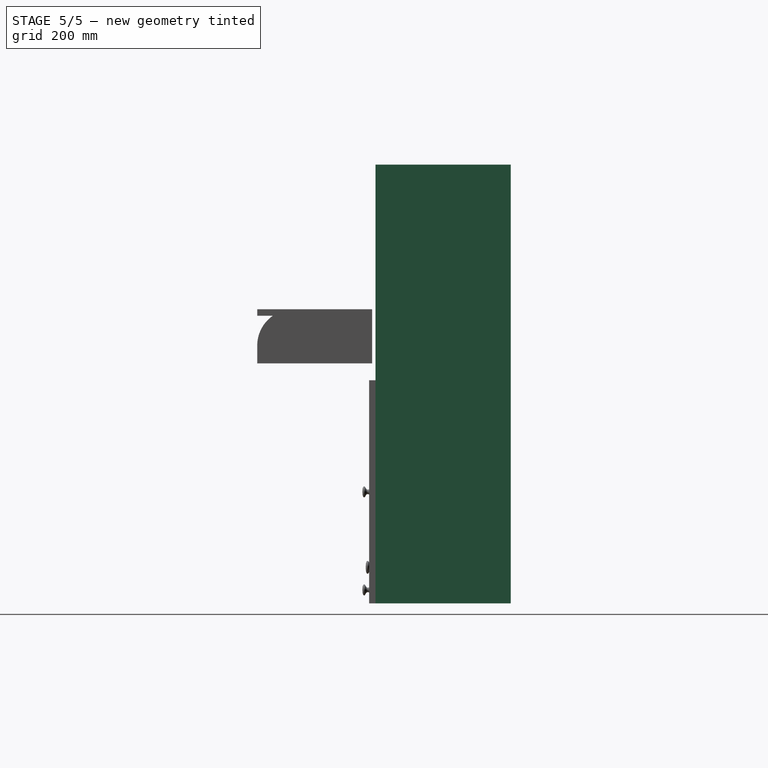
[diagram: stage 5 of 5 — right view after this stage's code; geometry added in this stage tinted green]
FEATURE [Part::Box] Box  label="Podstawa"
  AttacherType = Attacher::AttachEngine3D
  Height = 19
  Length = 1560
  Width = 400
FEATURE [Part::Box] Box001  label="Wierzcholek"
  AttacherType = Attacher::AttachEngine3D
  Height = 19
  Length = 1560
  Placement = pos=(0,0,1279) rot=(0,0,1;0rad)
  Width = 400
FEATURE [Part::Box] Box002  label="ScianaLewa"
  AttacherType = Attacher::AttachEngine3D
  Height = 1260
  Length = 19
  Placement = pos=(0,0,19) rot=(0,0,1;0rad)
  Width = 400
FEATURE [Part::Box] Box003  label="ScianaPrawa"
  AttacherType = Attacher::AttachEngine3D
  Height = 1260
  Length = 19
  Placement = pos=(1541,0,19) rot=(0,0,1;0rad)
  Width = 400
FEATURE [Part::Box] Box004  label="DolnaScianaGornyComp"
  AttacherType = Attacher::AttachEngine3D
  Height = 19
  Length = 1522
  Placement = pos=(19,0,887) rot=(0,0.707107,0.707107;0rad)
  Width = 400
FEATURE [Part::Box] Box005  label="DolnaScianaPodPianinem"
  AttacherType = Attacher::AttachEngine3D
  Height = 19
  Length = 1522
  Placement = pos=(19,0,663) rot=(0,0.707107,0.707107;0rad)
  Width = 400
FEATURE [Part::Box] Box006  label="PrawyDolnySep"
  AttacherType = Attacher::AttachEngine3D
  Height = 651
  Length = 27
  Placement = pos=(1157,0,19) rot=(0,0,1;0rad)
  Width = 400
FEATURE [Part::Box] Box007  label="LewyDolnySep"
  AttacherType = Attacher::AttachEngine3D
  Height = 651
  Length = 27
  Placement = pos=(376,0,19) rot=(0,0,1;0rad)
  Width = 400
FEATURE [Part::Box] Box008  label="GornySrodkowySep"
  AttacherType = Attacher::AttachEngine3D
  Height = 371
  Length = 27
  Placement = pos=(766.5,0,909) rot=(0,0,1;0rad)
  Width = 400
FEATURE [Part::Box] Box009  label="PoprzeczkaSzufladyDolna"
  AttacherType = Attacher::AttachEngine3D
  Height = 19
  Length = 754
  Placement = pos=(403,0,223) rot=(0,0,1;0rad)
  Width = 400
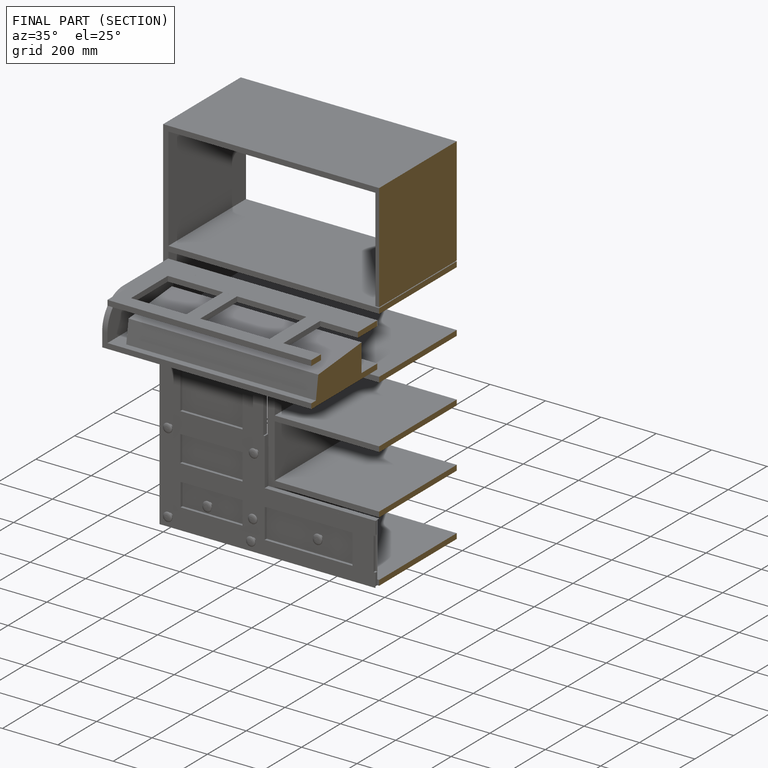
[diagram: finished part — half-section view (interior)]
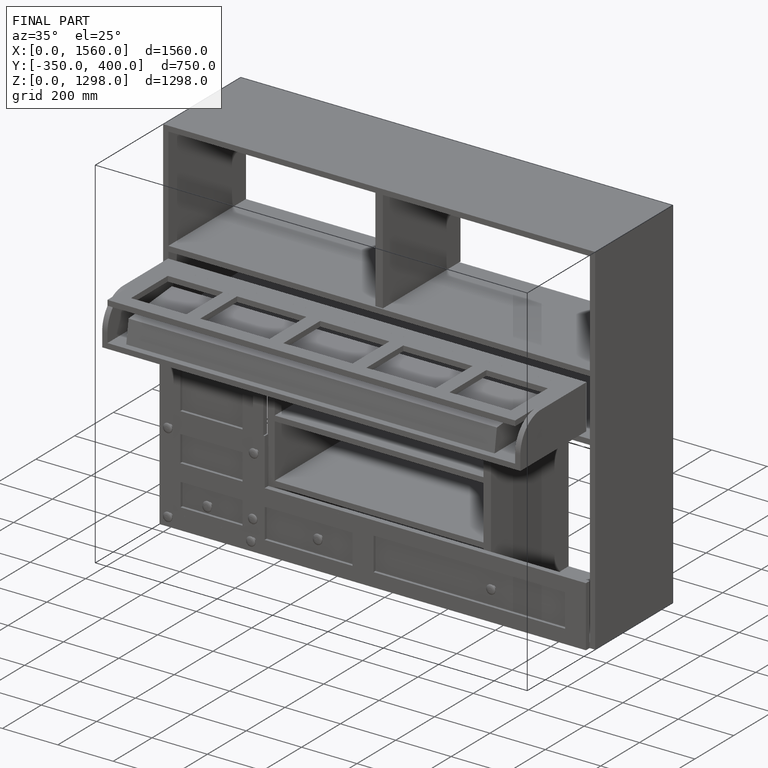
[diagram: finished part — iso view with bounding-box wireframe]
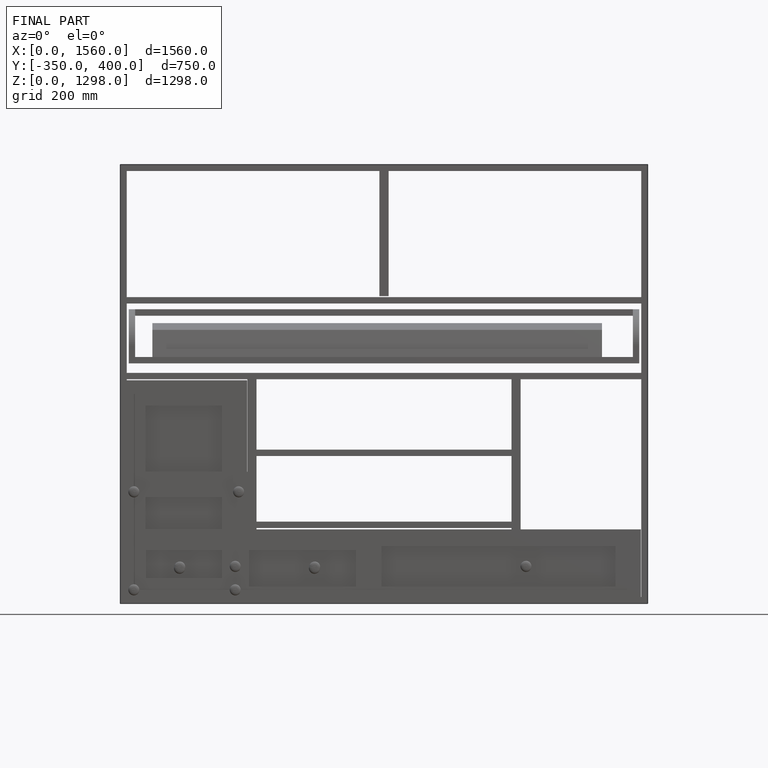
[diagram: finished part — front view with bounding-box wireframe]
